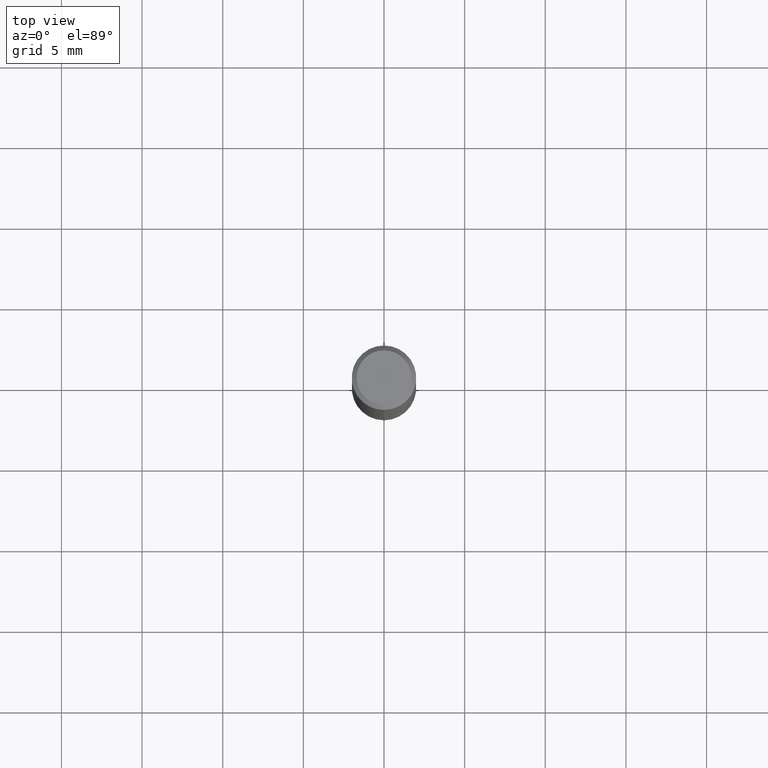
[diagram: clean part render]
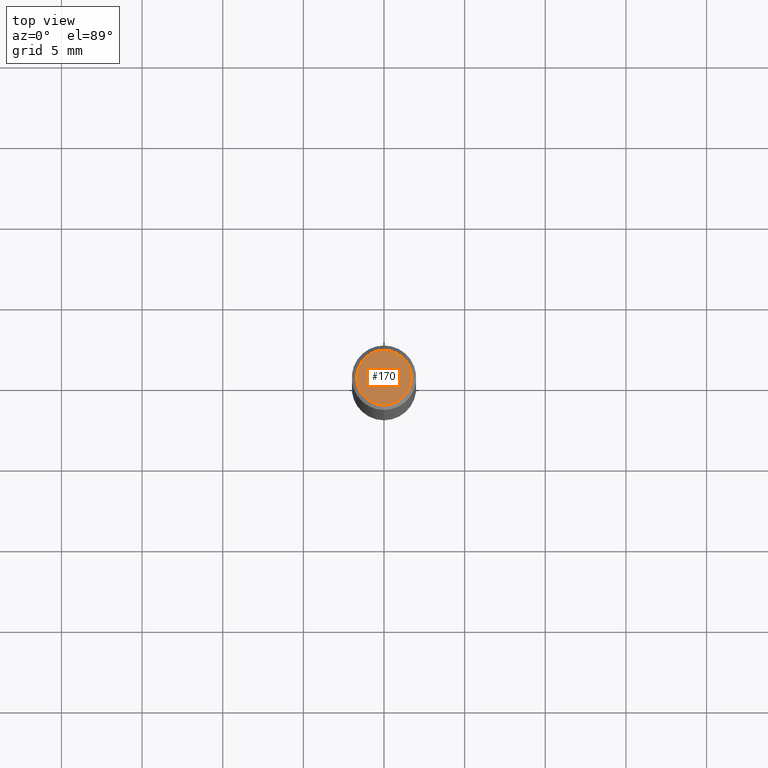
[diagram: same view with one face highlighted and labeled with its STEP entity id]
A machine part, top view. The second image highlights one B-rep face of the part: STEP entity #170.
In plain terms, the highlighted planar face has unit normal (-0, 0, 1).
Its self-contained STEP definition (entity closure, byte-faithful):
#116=EDGE_CURVE('',#190,#174,#258,.T.);
#140=EDGE_CURVE('',#174,#190,#283,.T.);
#170=ADVANCED_FACE('',(#319),#320,.T.);
#174=VERTEX_POINT('',#325);
#190=VERTEX_POINT('',#345);
#258=CIRCLE('',#416,1.7);
#283=CIRCLE('',#450,1.7);
#319=FACE_OUTER_BOUND('',#491,.T.);
#320=PLANE('',#492);
#325=CARTESIAN_POINT('',(2.08183080149804E-016,-1.7,0.0));
#345=CARTESIAN_POINT('',(0.0,1.7,0.0));
#416=AXIS2_PLACEMENT_3D('',#578,#579,#580);
#450=AXIS2_PLACEMENT_3D('',#603,#604,#605);
#491=EDGE_LOOP('',(#663,#664));
#492=AXIS2_PLACEMENT_3D('',#665,#666,#667);
#578=CARTESIAN_POINT('',(0.0,0.0,0.0));
#579=DIRECTION('',(0.0,0.0,-1.0));
#580=DIRECTION('',(0.0,1.0,0.0));
#603=CARTESIAN_POINT('',(0.0,0.0,0.0));
#604=DIRECTION('',(0.0,0.0,-1.0));
#605=DIRECTION('',(0.0,1.0,0.0));
#663=ORIENTED_EDGE('',*,*,#116,.F.);
#664=ORIENTED_EDGE('',*,*,#140,.F.);
#665=CARTESIAN_POINT('',(0.0,0.85,0.0));
#666=DIRECTION('',(-0.0,0.0,1.0));
#667=DIRECTION('',(0.0,-1.0,0.0));